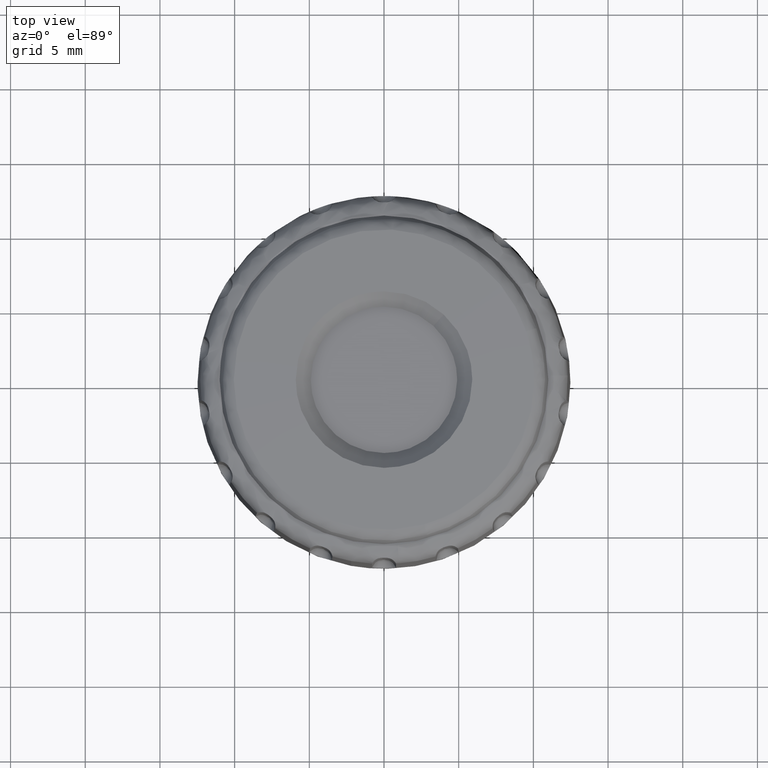
[diagram: clean part render]
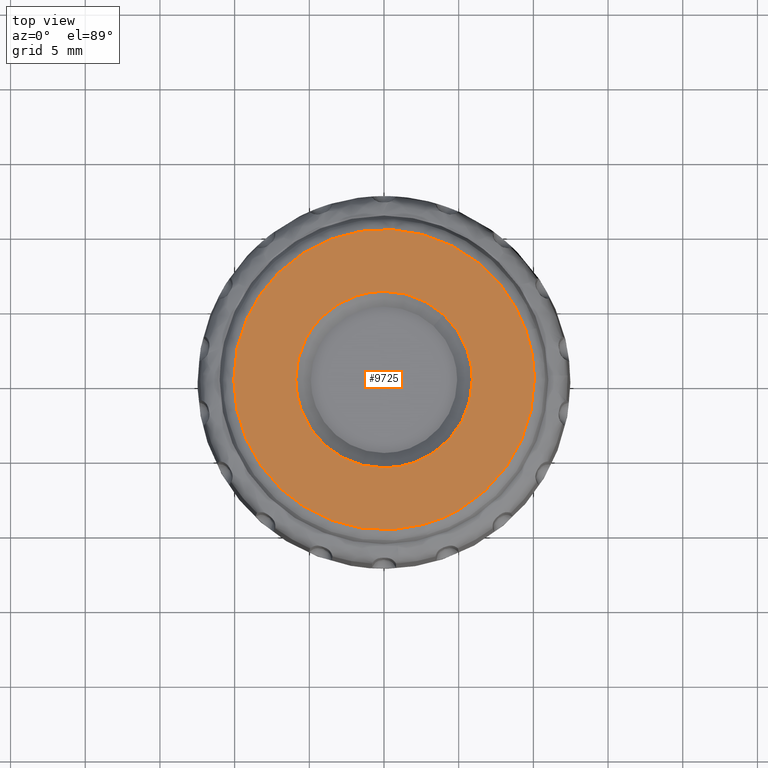
[diagram: same view with one face highlighted and labeled with its STEP entity id]
A machine part, top view. The second image highlights one B-rep face of the part: STEP entity #9725.
In plain terms, the highlighted face is a freeform B-spline surface patch.
Its self-contained STEP definition (entity closure, byte-faithful):
#1018=CARTESIAN_POINT('',(-4.121510523704353,4.235086081616508,17.941789629213130));
#1019=VERTEX_POINT('',#1018);
#1025=CARTESIAN_POINT('',(-5.909552000000001,0.0,17.941789677863099));
#1026=VERTEX_POINT('',#1025);
#1027=CARTESIAN_POINT('',(-5.909552000000001,0.0,17.941789677863099));
#1028=CARTESIAN_POINT('',(-5.909579961427733,0.344289280512981,17.941789673908129));
#1029=CARTESIAN_POINT('',(-5.849218368943428,1.032859275427118,17.941789665998382));
#1030=CARTESIAN_POINT('',(-5.599699866574541,1.962717210747509,17.941789655316342));
#1031=CARTESIAN_POINT('',(-5.239274585828556,2.773629377884649,17.941789646001819));
#1032=CARTESIAN_POINT('',(-4.771254063543299,3.527578527042646,17.941789637340410));
#1033=CARTESIAN_POINT('',(-4.368268847672907,3.994989721942714,17.941789631971162));
#1034=CARTESIAN_POINT('',(-4.121510523704353,4.235086081616508,17.941789629213130));
#1035=B_SPLINE_CURVE_WITH_KNOTS('',3,(#1027,#1028,#1029,#1030,#1031,#1032,#1033,#1034),.UNSPECIFIED.,.F.,.U.,(4,1,1,1,1,4),(5.294007E-009,1.032865421142497,2.065733851566983,2.877268428543174,3.688805999984347,4.721671415833034),.UNSPECIFIED.);
#1036=EDGE_CURVE('',#1026,#1019,#1035,.T.);
#1038=CARTESIAN_POINT('',(-0.000000389343326,-5.909551999999988,17.941789677863099));
#1039=VERTEX_POINT('',#1038);
#1040=CARTESIAN_POINT('',(-0.000000389343326,-5.909551999999988,17.941789677863099));
#1041=CARTESIAN_POINT('',(-0.410958113361764,-5.909617725664628,17.941789677863010));
#1042=CARTESIAN_POINT('',(-1.003184315089830,-5.847517291879191,17.941789677863230));
#1043=CARTESIAN_POINT('',(-1.799426435443761,-5.640235188980266,17.941789677863010));
#1044=CARTESIAN_POINT('',(-2.513596228268590,-5.372315670359069,17.941789677863390));
#1045=CARTESIAN_POINT('',(-3.298956088845607,-4.936919228488428,17.941789677862619));
#1046=CARTESIAN_POINT('',(-4.027880797940398,-4.353499304945599,17.941789677863920));
#1047=CARTESIAN_POINT('',(-4.547308043078855,-3.794324835052039,17.941789677862719));
#1048=CARTESIAN_POINT('',(-4.956444182928266,-3.239110050994781,17.941789677863230));
#1049=CARTESIAN_POINT('',(-5.340617282338554,-2.579989231259769,17.941789677863401));
#1050=CARTESIAN_POINT('',(-5.678489504787986,-1.735175876526118,17.941789677862420));
#1051=CARTESIAN_POINT('',(-5.872131540383712,-0.833989614165429,17.941789677863738));
#1052=CARTESIAN_POINT('',(-5.909556442661109,-0.253820278905172,17.941789677862850));
#1053=CARTESIAN_POINT('',(-5.909552000000001,0.0,17.941789677863099));
#1054=B_SPLINE_CURVE_WITH_KNOTS('',3,(#1040,#1041,#1042,#1043,#1044,#1045,#1046,#1047,#1048,#1049,#1050,#1051,#1052,#1053),.UNSPECIFIED.,.F.,.U.,(4,1,1,1,1,1,1,1,1,1,1,4),(0.000000019279783,1.232854568894965,1.776768922766917,2.465722228803837,3.517282081273462,4.460064518624194,5.257786400349104,5.801691197123095,6.526910287804832,7.542211037293721,8.521253250701959,9.282716917029221),.UNSPECIFIED.);
#1055=EDGE_CURVE('',#1039,#1026,#1054,.T.);
#1057=CARTESIAN_POINT('',(5.909552000000001,0.0,17.941789677863099));
#1058=VERTEX_POINT('',#1057);
#1059=CARTESIAN_POINT('',(5.909552000000001,0.0,17.941789677863099));
#1060=CARTESIAN_POINT('',(5.909588068536682,-0.362607398018749,17.941789677863159));
#1061=CARTESIAN_POINT('',(5.854866286578627,-0.954848726588488,17.941789677862960));
#1062=CARTESIAN_POINT('',(5.668876212469824,-1.707071779427763,17.941789677863259));
#1063=CARTESIAN_POINT('',(5.442764716583780,-2.332965134602608,17.941789677862879));
#1064=CARTESIAN_POINT('',(5.164780867172883,-2.898122282612337,17.941789677863142));
#1065=CARTESIAN_POINT('',(4.779101515773091,-3.498981060121669,17.941789677863131));
#1066=CARTESIAN_POINT('',(4.325677649747259,-4.051490623699084,17.941789677862889));
#1067=CARTESIAN_POINT('',(3.750520770174827,-4.589071764409744,17.941789677863440));
#1068=CARTESIAN_POINT('',(3.020782035155498,-5.109782086360139,17.941789677862861));
#1069=CARTESIAN_POINT('',(2.105615798374611,-5.559959764302447,17.941789677863252));
#1070=CARTESIAN_POINT('',(1.051548453606278,-5.848145207192135,17.941789677863060));
#1071=CARTESIAN_POINT('',(0.338431761359642,-5.909573528986906,17.941789677863110));
#1072=CARTESIAN_POINT('',(-0.000000389343326,-5.909551999999988,17.941789677863099));
#1073=B_SPLINE_CURVE_WITH_KNOTS('',3,(#1059,#1060,#1061,#1062,#1063,#1064,#1065,#1066,#1067,#1068,#1069,#1070,#1071,#1072),.UNSPECIFIED.,.F.,.U.,(4,1,1,1,1,1,1,1,1,1,1,4),(0.000000019250951,1.087816095096413,1.776769006727332,2.320679467894081,3.082156893308775,3.662329459065650,4.460064729613430,5.221520015471144,6.019258090670251,7.143342111646616,8.267422525487895,9.282717355910574),.UNSPECIFIED.);
#1074=EDGE_CURVE('',#1058,#1039,#1073,.T.);
#1076=CARTESIAN_POINT('',(3.992435560858936,4.356978867536604,17.941789726345821));
#1077=VERTEX_POINT('',#1076);
#1078=CARTESIAN_POINT('',(3.992435560858936,4.356978867536604,17.941789726345821));
#1079=CARTESIAN_POINT('',(4.293491161503050,4.081201226265338,17.941789723277001));
#1080=CARTESIAN_POINT('',(4.684862101915861,3.639653155751699,17.941789718363729));
#1081=CARTESIAN_POINT('',(5.151231539487275,2.922223032137471,17.941789710380391));
#1082=CARTESIAN_POINT('',(5.528317807900984,2.167138278373817,17.941789701978450));
#1083=CARTESIAN_POINT('',(5.833694954724783,1.161001495668002,17.941789690781459));
#1084=CARTESIAN_POINT('',(5.909594847704259,0.382752116196314,17.941789682122600));
#1085=CARTESIAN_POINT('',(5.909552000000001,0.0,17.941789677863099));
#1086=B_SPLINE_CURVE_WITH_KNOTS('',3,(#1078,#1079,#1080,#1081,#1082,#1083,#1084,#1085),.UNSPECIFIED.,.F.,.U.,(4,1,1,1,1,4),(5.554678E-009,1.224803229497416,1.760656166787951,2.564430987877004,3.750959974129303,4.899212759958373),.UNSPECIFIED.);
#1087=EDGE_CURVE('',#1077,#1058,#1086,.T.);
#1183=CARTESIAN_POINT('',(0.000000389343435,5.909551999999987,17.941789677863099));
#1184=VERTEX_POINT('',#1183);
#1185=CARTESIAN_POINT('',(0.000000389343435,5.909551999999987,17.941789677863099));
#1186=CARTESIAN_POINT('',(0.399542939530655,5.909611658836901,17.941789682715040));
#1187=CARTESIAN_POINT('',(1.073023380298370,5.840971846815012,17.941789690893451));
#1188=CARTESIAN_POINT('',(2.064935853786544,5.563935389415687,17.941789702938991));
#1189=CARTESIAN_POINT('',(3.033052824578855,5.117927394493179,17.941789714695389));
#1190=CARTESIAN_POINT('',(3.672664643772276,4.650098001553720,17.941789722462619));
#1191=CARTESIAN_POINT('',(3.992435560858936,4.356978867536604,17.941789726345821));
#1192=B_SPLINE_CURVE_WITH_KNOTS('',3,(#1185,#1186,#1187,#1188,#1189,#1190,#1191),.UNSPECIFIED.,.F.,.U.,(4,1,1,1,4),(4.441839E-009,1.198614828261038,2.020521887009480,3.082150208789495,4.383504236226506),.UNSPECIFIED.);
#1193=EDGE_CURVE('',#1184,#1077,#1192,.T.);
#1195=CARTESIAN_POINT('',(-4.121510523704353,4.235086081616508,17.941789629213130));
#1196=CARTESIAN_POINT('',(-3.857661617086733,4.491920901917562,17.941789632327570));
#1197=CARTESIAN_POINT('',(-3.383898016869236,4.873636736270992,17.941789637919879));
#1198=CARTESIAN_POINT('',(-2.508478223686525,5.380264388208157,17.941789648253241));
#1199=CARTESIAN_POINT('',(-1.648610117197034,5.705690334975329,17.941789658403088));
#1200=CARTESIAN_POINT('',(-0.748291397630664,5.878713147368896,17.941789669030310));
#1201=CARTESIAN_POINT('',(-0.237552727517146,5.909556892811210,17.941789675059109));
#1202=CARTESIAN_POINT('',(0.000000389343435,5.909551999999987,17.941789677863099));
#1203=B_SPLINE_CURVE_WITH_KNOTS('',3,(#1195,#1196,#1197,#1198,#1199,#1200,#1201,#1202),.UNSPECIFIED.,.F.,.U.,(4,1,1,1,1,4),(4.759321E-009,1.104628162774386,1.817293740988276,3.028818519212513,3.848385077119905,4.561046008430395),.UNSPECIFIED.);
#1204=EDGE_CURVE('',#1019,#1184,#1203,.T.);
#3458=CARTESIAN_POINT('',(2.677068738669253,-9.691722231942137,17.831459028480641));
#3459=VERTEX_POINT('',#3458);
#3470=CARTESIAN_POINT('',(-10.054659382515901,0.0,17.831459031072551));
#3471=VERTEX_POINT('',#3470);
#3472=CARTESIAN_POINT('',(2.677068738669253,-9.691722231942137,17.831459028480641));
#3473=CARTESIAN_POINT('',(2.305498260972769,-9.794366720230359,17.831459028617569));
#3474=CARTESIAN_POINT('',(1.550527667331390,-9.956844623584768,17.831459028888460));
#3475=CARTESIAN_POINT('',(0.325525869923500,-10.076021864146171,17.831459029305041));
#3476=CARTESIAN_POINT('',(-1.098711176464527,-10.034999724340739,17.831459029760818));
#3477=CARTESIAN_POINT('',(-2.477800873247067,-9.779210437826304,17.831459030167760));
#3478=CARTESIAN_POINT('',(-3.735983228013136,-9.357235767568284,17.831459030509169));
#3479=CARTESIAN_POINT('',(-4.895940949335525,-8.818273514115706,17.831459030799760));
#3480=CARTESIAN_POINT('',(-5.891960633249989,-8.177646980979942,17.831459031021751));
#3481=CARTESIAN_POINT('',(-6.803020433023138,-7.425393527229225,17.831459031197291));
#3482=CARTESIAN_POINT('',(-7.637673956552955,-6.587714341409177,17.831459031335459));
#3483=CARTESIAN_POINT('',(-8.540950995253770,-5.392110030273729,17.831459031438310));
#3484=CARTESIAN_POINT('',(-9.224262526568332,-4.084749842297124,17.831459031452422));
#3485=CARTESIAN_POINT('',(-9.717130863155029,-2.697892342093597,17.831459031391908));
#3486=CARTESIAN_POINT('',(-9.992231229581380,-1.397403298057543,17.831459031274360));
#3487=CARTESIAN_POINT('',(-10.054670462106801,-0.433676131314561,17.831459031141598));
#3488=CARTESIAN_POINT('',(-10.054659382515901,0.0,17.831459031072551));
#3489=B_SPLINE_CURVE_WITH_KNOTS('',3,(#3472,#3473,#3474,#3475,#3476,#3477,#3478,#3479,#3480,#3481,#3482,#3483,#3484,#3485,#3486,#3487,#3488),.UNSPECIFIED.,.F.,.U.,(4,1,1,1,1,1,1,1,1,1,1,1,1,1,4),(3.272174E-009,1.156463872361275,2.312947567346797,3.686266100185137,5.420981906045935,6.505183542451055,7.661657145293900,9.251806935382399,10.046881537644220,11.203350991091639,12.793511237839020,14.528229818974809,15.612429650670849,17.202582112658771,18.503613867492941),.UNSPECIFIED.);
#3490=EDGE_CURVE('',#3459,#3471,#3489,.T.);
#3492=CARTESIAN_POINT('',(9.522750939903190,3.226978708582348,17.831459028153130));
#3493=VERTEX_POINT('',#3492);
#3494=CARTESIAN_POINT('',(-10.054659382515901,0.0,17.831459031072551));
#3495=CARTESIAN_POINT('',(-10.054690900846939,0.515932844648516,17.831459031147158));
#3496=CARTESIAN_POINT('',(-9.982165524535152,1.455654244709706,17.831459031270690));
#3497=CARTESIAN_POINT('',(-9.711657390864568,2.681645450944963,17.831459031401181));
#3498=CARTESIAN_POINT('',(-9.314549680109014,3.852009918704852,17.831459031501989));
#3499=CARTESIAN_POINT('',(-8.754243697474085,5.017730609892197,17.831459031573178));
#3500=CARTESIAN_POINT('',(-8.041075866810326,6.074207394011886,17.831459031603249));
#3501=CARTESIAN_POINT('',(-7.308364898676643,6.927994295761131,17.831459031600129));
#3502=CARTESIAN_POINT('',(-6.589861687708722,7.618285933209947,17.831459031575381));
#3503=CARTESIAN_POINT('',(-5.657639100255903,8.343171573541934,17.831459031519248));
#3504=CARTESIAN_POINT('',(-4.657760405698946,8.938746167268317,17.831459031432381));
#3505=CARTESIAN_POINT('',(-3.560984296658706,9.423604559634676,17.831459031312871));
#3506=CARTESIAN_POINT('',(-2.435724942175424,9.782902370792634,17.831459031170059));
#3507=CARTESIAN_POINT('',(-1.236999526739820,10.004253810387709,17.831459030994690));
#3508=CARTESIAN_POINT('',(0.015690230417444,10.078123664624430,17.831459030788800));
#3509=CARTESIAN_POINT('',(1.379560505763801,9.997197961115383,17.831459030541399));
#3510=CARTESIAN_POINT('',(2.772910076984456,9.703509043929255,17.831459030257570));
#3511=CARTESIAN_POINT('',(4.053415389603607,9.227061237513860,17.831459029967441));
#3512=CARTESIAN_POINT('',(5.038389820333455,8.721282942019345,17.831459029723881));
#3513=CARTESIAN_POINT('',(5.920122764506833,8.148509748145688,17.831459029488219));
#3514=CARTESIAN_POINT('',(6.883265279339706,7.373200464708994,17.831459029209750));
#3515=CARTESIAN_POINT('',(7.884819600465304,6.310043031364042,17.831459028882328));
#3516=CARTESIAN_POINT('',(8.846023138163696,4.884786136784673,17.831459028510540));
#3517=CARTESIAN_POINT('',(9.321753432025632,3.820349936219347,17.831459028273521));
#3518=CARTESIAN_POINT('',(9.522750939903190,3.226978708582348,17.831459028153130));
#3519=B_SPLINE_CURVE_WITH_KNOTS('',3,(#3494,#3495,#3496,#3497,#3498,#3499,#3500,#3501,#3502,#3503,#3504,#3505,#3506,#3507,#3508,#3509,#3510,#3511,#3512,#3513,#3514,#3515,#3516,#3517,#3518),.UNSPECIFIED.,.F.,.U.,(4,1,1,1,1,1,1,1,1,1,1,1,1,1,1,1,1,1,1,1,1,1,4),(0.000000030338860,1.547794239457367,2.819200113216144,3.758922929104855,5.251446953854757,6.688691359864432,7.573148431125624,8.623438876974916,9.673729326530239,11.110982101557751,12.105995414318841,13.266831514220531,14.648772548246219,15.754355292021140,17.025747442806690,18.739384752683801,20.010793989202991,21.116366967416852,22.056103561827349,23.161672050087869,24.820035129938969,26.423112440328659,28.302564754763878),.UNSPECIFIED.);
#3520=EDGE_CURVE('',#3471,#3493,#3519,.T.);
#3565=CARTESIAN_POINT('',(10.054659382515901,0.0,17.831459031072551));
#3566=VERTEX_POINT('',#3565);
#3567=CARTESIAN_POINT('',(9.522750939903190,3.226978708582348,17.831459028153130));
#3568=CARTESIAN_POINT('',(9.665537652351846,2.805657227100697,17.831459028936841));
#3569=CARTESIAN_POINT('',(9.948041168565137,1.745185970346016,17.831459030487309));
#3570=CARTESIAN_POINT('',(10.054747805145350,0.650186770575466,17.831459031073081));
#3571=CARTESIAN_POINT('',(10.054659382515901,0.0,17.831459031072551));
#3572=B_SPLINE_CURVE_WITH_KNOTS('',3,(#3567,#3568,#3569,#3570,#3571),.UNSPECIFIED.,.F.,.U.,(4,1,4),(6.850964E-010,1.334580174556385,3.285118561244912),.UNSPECIFIED.);
#3573=EDGE_CURVE('',#3493,#3566,#3572,.T.);
#3575=CARTESIAN_POINT('',(10.054659382515901,0.0,17.831459031072551));
#3576=CARTESIAN_POINT('',(10.054772159034290,-0.715544569813107,17.831459031072569));
#3577=CARTESIAN_POINT('',(9.932282028527622,-1.856938885754772,17.831459031029599));
#3578=CARTESIAN_POINT('',(9.507358596306309,-3.351162675725236,17.831459030880271));
#3579=CARTESIAN_POINT('',(9.000344379694671,-4.545164240898254,17.831459030701861));
#3580=CARTESIAN_POINT('',(8.420761688603710,-5.531636801798263,17.831459030499101));
#3581=CARTESIAN_POINT('',(7.687149660778115,-6.515982277604886,17.831459030240421));
#3582=CARTESIAN_POINT('',(6.926336890654300,-7.324751442546321,17.831459029973519));
#3583=CARTESIAN_POINT('',(5.980165607264858,-8.107879696807149,17.831459029641518));
#3584=CARTESIAN_POINT('',(4.968071231541421,-8.774062480959024,17.831459029285160));
#3585=CARTESIAN_POINT('',(3.846732365133291,-9.319183429853657,17.831459028892059));
#3586=CARTESIAN_POINT('',(3.038343682338898,-9.591934530273273,17.831459028607060));
#3587=CARTESIAN_POINT('',(2.677068738669253,-9.691722231942137,17.831459028480641));
#3588=B_SPLINE_CURVE_WITH_KNOTS('',3,(#3575,#3576,#3577,#3578,#3579,#3580,#3581,#3582,#3583,#3584,#3585,#3586,#3587),.UNSPECIFIED.,.F.,.U.,(4,1,1,1,1,1,1,1,1,1,4),(0.000000010536274,2.146603636696836,3.424350740013361,4.650987372826522,6.030948407127416,6.848695392910227,8.330880249069924,9.353074178201666,10.528599602010930,11.959673344921770,13.084084166762940),.UNSPECIFIED.);
#3589=EDGE_CURVE('',#3566,#3459,#3588,.T.);
#9687=CARTESIAN_POINT('',(-11.054717711246463,-11.051500963101445,17.592485791595173));
#9688=CARTESIAN_POINT('',(-5.529237104319104,-11.055256367411818,17.796232976084486));
#9689=CARTESIAN_POINT('',(5.529233305718487,-11.055256367411818,17.796232976084486));
#9690=CARTESIAN_POINT('',(11.054710121785643,-11.051500968259630,17.592486071449692));
#9691=CARTESIAN_POINT('',(-11.058472022051193,-5.527627090730541,17.796114378651410));
#9692=CARTESIAN_POINT('',(-5.531115535905244,-5.529506068698154,17.999999999999890));
#9693=CARTESIAN_POINT('',(5.531111736014140,-5.529506068698154,17.999999999999890));
#9694=CARTESIAN_POINT('',(11.058464430014668,-5.527627093311391,17.796114658696055));
#9695=CARTESIAN_POINT('',(-11.058472022051193,5.527607654936431,17.796114378651410));
#9696=CARTESIAN_POINT('',(-5.531115535905244,5.529486626297334,17.999999999999890));
#9697=CARTESIAN_POINT('',(5.531111736014140,5.529486626297334,17.999999999999890));
#9698=CARTESIAN_POINT('',(11.058464430014668,5.527607657517272,17.796114658696055));
#9699=CARTESIAN_POINT('',(-11.054717737638654,11.051462131094434,17.592487223071153));
#9700=CARTESIAN_POINT('',(-5.529237117524175,11.055217522218305,17.796234408533511));
#9701=CARTESIAN_POINT('',(5.529233318923549,11.055217522218305,17.796234408533511));
#9702=CARTESIAN_POINT('',(11.054710148177829,11.051462136252615,17.592487502925689));
#9710=(BOUNDED_SURFACE()B_SPLINE_SURFACE(2,2,((#9687,#9691,#9695,#9699),(#9688,#9692,#9696,#9700),(#9689,#9693,#9697,#9701),(#9690,#9694,#9698,#9702)),.UNSPECIFIED.,.F.,.F.,.U.)B_SPLINE_SURFACE_WITH_KNOTS((3,1,3),(3,1,3),(120.467627652740500,131.258495222790710,142.049355379486090),(120.470767624664300,131.258495222790710,142.046184889984090),.UNSPECIFIED.)GEOMETRIC_REPRESENTATION_ITEM()RATIONAL_B_SPLINE_SURFACE(((1.000679651960392,1.000339924878573,1.000339924878573,1.000679649571355),(1.000339727081820,1.0,1.0,1.000339724692782),(1.000339727081820,1.0,1.0,1.000339724692782),(1.000679651493334,1.000339924411514,1.000339924411514,1.000679649104296)))REPRESENTATION_ITEM('')SURFACE());
#9711=ORIENTED_EDGE('',*,*,#3490,.F.);
#9712=ORIENTED_EDGE('',*,*,#3589,.F.);
#9713=ORIENTED_EDGE('',*,*,#3573,.F.);
#9714=ORIENTED_EDGE('',*,*,#3520,.F.);
#9715=EDGE_LOOP('',(#9711,#9712,#9713,#9714));
#9716=FACE_OUTER_BOUND('',#9715,.T.);
#9717=ORIENTED_EDGE('',*,*,#1074,.T.);
#9718=ORIENTED_EDGE('',*,*,#1055,.T.);
#9719=ORIENTED_EDGE('',*,*,#1036,.T.);
#9720=ORIENTED_EDGE('',*,*,#1204,.T.);
#9721=ORIENTED_EDGE('',*,*,#1193,.T.);
#9722=ORIENTED_EDGE('',*,*,#1087,.T.);
#9723=EDGE_LOOP('',(#9717,#9718,#9719,#9720,#9721,#9722));
#9724=FACE_BOUND('',#9723,.T.);
#9725=ADVANCED_FACE('',(#9716,#9724),#9710,.T.);